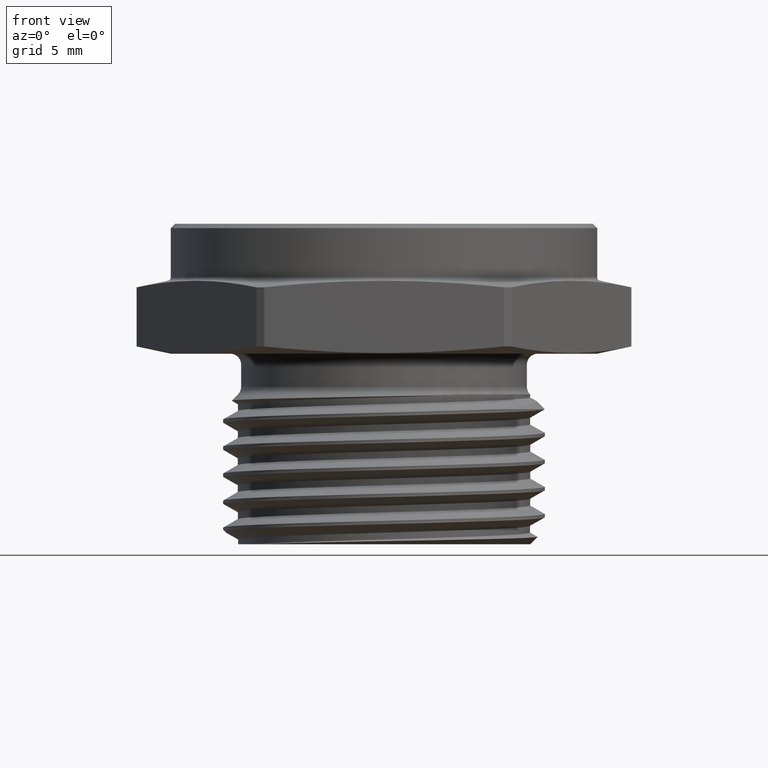
[diagram: clean part render]
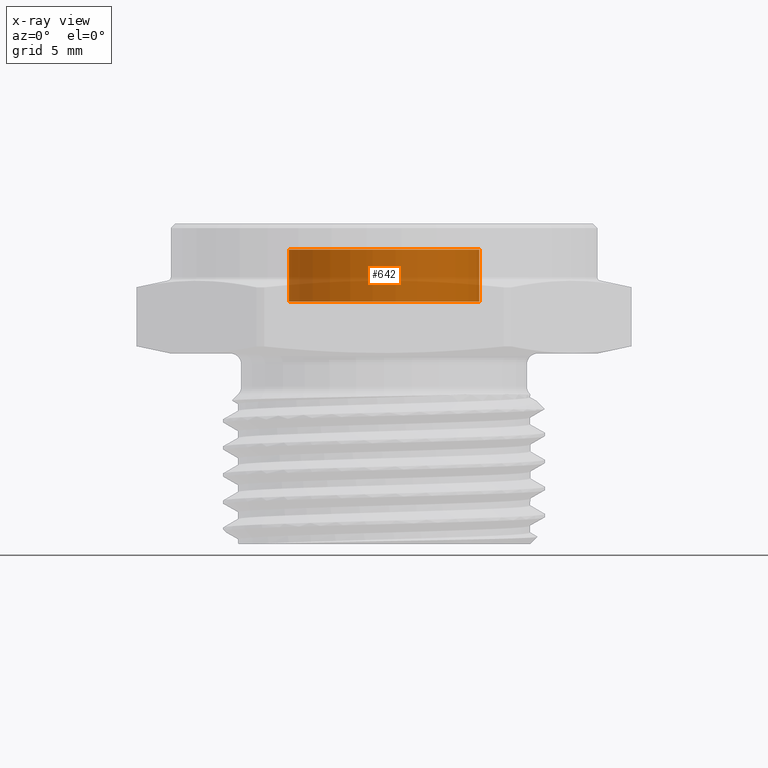
[diagram: x-ray — body ghosted, one internal face saturated and labeled with its STEP entity id]
A machine part, front view, then the same camera in x-ray: the body is ghosted and one INTERNAL B-rep face — a face not visible from any outside direction — is saturated and labeled: STEP entity #642.
In plain terms, the highlighted cylindrical surface (partial cylindrical patch) has radius 5.588 mm, axis along (-0, -0, 1).
Its self-contained STEP definition (entity closure, byte-faithful):
#24 = EDGE_LOOP ( 'NONE', ( #164, #165, #166, #167 ) ) ;
#164 = ORIENTED_EDGE ( 'NONE', *, *, #2699, .F. ) ;
#165 = ORIENTED_EDGE ( 'NONE', *, *, #2703, .F. ) ;
#166 = ORIENTED_EDGE ( 'NONE', *, *, #2702, .T. ) ;
#167 = ORIENTED_EDGE ( 'NONE', *, *, #2704, .T. ) ;
#274 = LINE ( 'NONE', #994, #275 ) ;
#275 = VECTOR ( 'NONE', #995, 39.37007874015748100 ) ;
#276 = CIRCLE ( 'NONE', #519, 0.2200000000000001100 ) ;
#277 = LINE ( 'NONE', #996, #279 ) ;
#279 = VECTOR ( 'NONE', #997, 39.37007874015748100 ) ;
#280 = CIRCLE ( 'NONE', #520, 0.2200000000000001100 ) ;
#368 = VERTEX_POINT ( 'NONE', #3074 ) ;
#369 = VERTEX_POINT ( 'NONE', #3071 ) ;
#370 = VERTEX_POINT ( 'NONE', #3073 ) ;
#372 = VERTEX_POINT ( 'NONE', #3072 ) ;
#424 = AXIS2_PLACEMENT_3D ( 'NONE', #1341, #1342, #1340 ) ;
#519 = AXIS2_PLACEMENT_3D ( 'NONE', #1006, #1007, #1008 ) ;
#520 = AXIS2_PLACEMENT_3D ( 'NONE', #1009, #1010, #1011 ) ;
#642 = ADVANCED_FACE ( 'NONE', ( #2431 ), #2434, .T. ) ;
#994 = CARTESIAN_POINT ( 'NONE',  ( -0.2200000000000001100, 2.694222958124177900E-017, 0.1200000000000000600 ) ) ;
#995 = DIRECTION ( 'NONE',  ( -0.0000000000000000000, -0.0000000000000000000, 1.000000000000000000 ) ) ;
#996 = CARTESIAN_POINT ( 'NONE',  ( 0.2200000000000001100, 0.0000000000000000000, 0.1200000000000000600 ) ) ;
#997 = DIRECTION ( 'NONE',  ( -0.0000000000000000000, -0.0000000000000000000, 1.000000000000000000 ) ) ;
#1006 = CARTESIAN_POINT ( 'NONE',  ( 0.0000000000000000000, 0.0000000000000000000, 0.1200000000000000600 ) ) ;
#1007 = DIRECTION ( 'NONE',  ( 0.0000000000000000000, 0.0000000000000000000, -1.000000000000000000 ) ) ;
#1008 = DIRECTION ( 'NONE',  ( -1.000000000000000000, 0.0000000000000000000, 0.0000000000000000000 ) ) ;
#1009 = CARTESIAN_POINT ( 'NONE',  ( 0.0000000000000000000, 0.0000000000000000000, 0.2400000000000000700 ) ) ;
#1010 = DIRECTION ( 'NONE',  ( 0.0000000000000000000, 0.0000000000000000000, -1.000000000000000000 ) ) ;
#1011 = DIRECTION ( 'NONE',  ( -1.000000000000000000, 0.0000000000000000000, 0.0000000000000000000 ) ) ;
#1340 = DIRECTION ( 'NONE',  ( 1.000000000000000000, 0.0000000000000000000, 0.0000000000000000000 ) ) ;
#1341 = CARTESIAN_POINT ( 'NONE',  ( 0.0000000000000000000, 0.0000000000000000000, 0.1200000000000000600 ) ) ;
#1342 = DIRECTION ( 'NONE',  ( -0.0000000000000000000, -0.0000000000000000000, 1.000000000000000000 ) ) ;
#2431 = FACE_OUTER_BOUND ( 'NONE', #24, .T. ) ;
#2434 = CYLINDRICAL_SURFACE ( 'NONE', #424, 0.2200000000000001100 ) ;
#2699 = EDGE_CURVE ( 'NONE', #372, #369, #274, .T. ) ;
#2702 = EDGE_CURVE ( 'NONE', #370, #368, #277, .T. ) ;
#2703 = EDGE_CURVE ( 'NONE', #370, #372, #276, .T. ) ;
#2704 = EDGE_CURVE ( 'NONE', #368, #369, #280, .T. ) ;
#3071 = CARTESIAN_POINT ( 'NONE',  ( -0.2200000000000001100, 2.694222958124177900E-017, 0.2400000000000000700 ) ) ;
#3072 = CARTESIAN_POINT ( 'NONE',  ( -0.2200000000000001100, 2.694222958124177900E-017, 0.1200000000000000600 ) ) ;
#3073 = CARTESIAN_POINT ( 'NONE',  ( 0.2200000000000001100, 0.0000000000000000000, 0.1200000000000000600 ) ) ;
#3074 = CARTESIAN_POINT ( 'NONE',  ( 0.2200000000000001100, 0.0000000000000000000, 0.2400000000000000700 ) ) ;